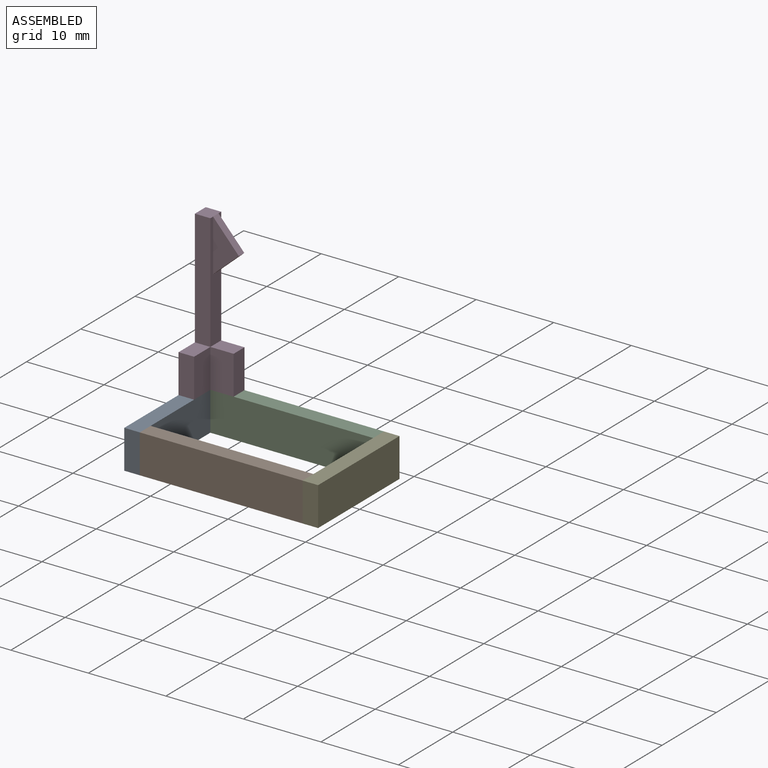
[diagram: assembled view]
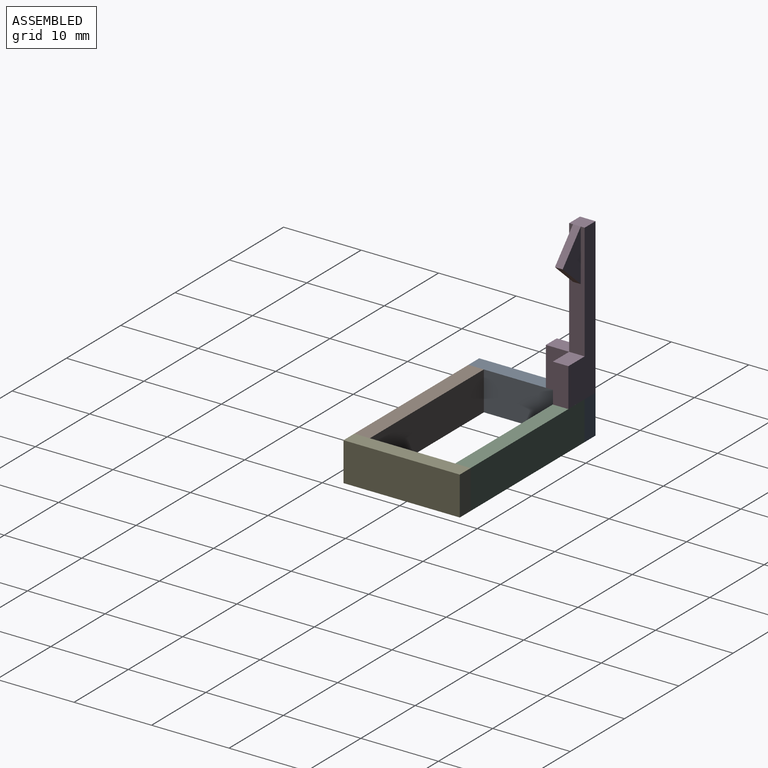
[diagram: assembled view, second angle]
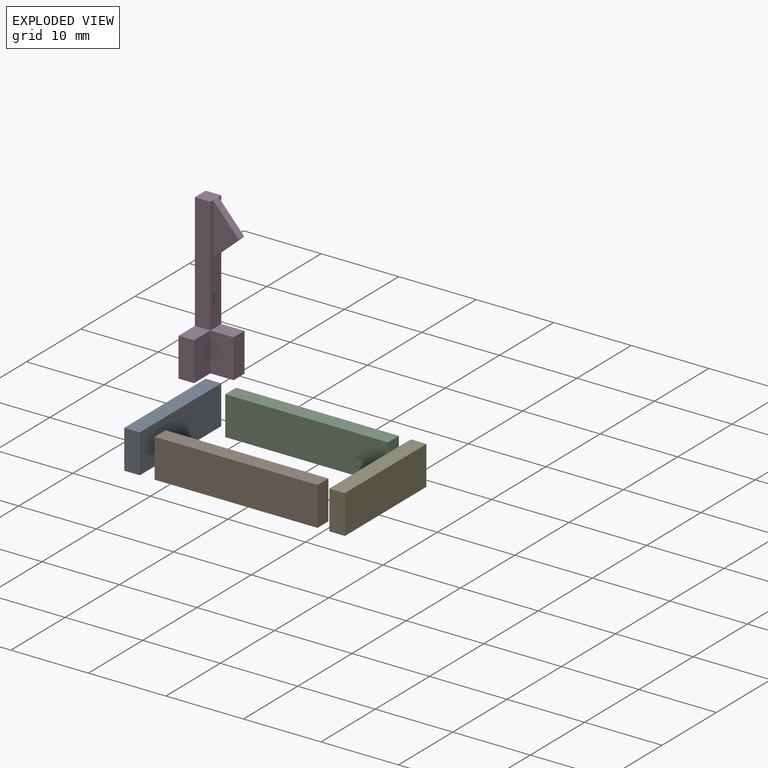
[diagram: exploded view]
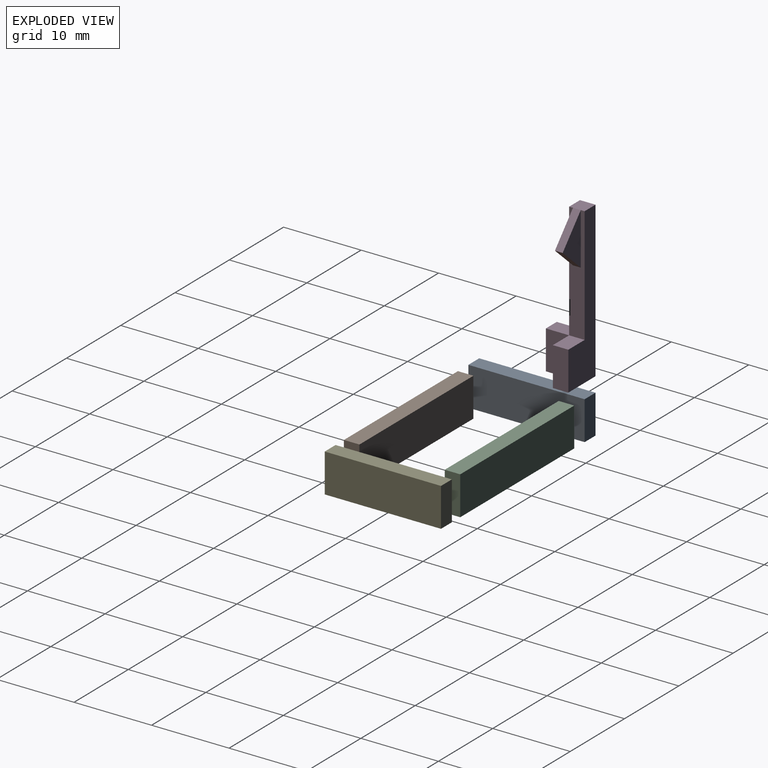
[diagram: exploded view, second angle]
ASSEMBLY  parts=5 mates=4
PART A: 6 faces, bbox 15x2x5 mm
  f0: plane 15x2mm, normal (0,0,1), area 30mm2, adj f1,f3,f4,f5
  f1: plane 5x2mm, normal (-1,0,0), area 10mm2, adj f0,f2,f4,f5
  f2: plane 15x2mm, normal (0,0,-1), area 30mm2, adj f1,f3,f4,f5
  f3: plane 5x2mm, normal (1,0,0), area 10mm2, adj f0,f2,f4,f5
  f4: plane 15x5mm, normal (0,-1,0), area 75mm2, adj f0,f1,f2,f3
  f5: plane 15x5mm, normal (0,1,0), area 75mm2, adj f0,f1,f2,f3
PART B: 6 faces, bbox 21x2x5 mm
  f0: plane 21x2mm, normal (0,0,1), area 42mm2, adj f1,f3,f4,f5
  f1: plane 5x2mm, normal (-1,0,0), area 10mm2, adj f0,f2,f4,f5
  f2: plane 21x2mm, normal (0,0,-1), area 42mm2, adj f1,f3,f4,f5
  f3: plane 5x2mm, normal (1,0,0), area 10mm2, adj f0,f2,f4,f5
  f4: plane 21x5mm, normal (0,-1,0), area 105mm2, adj f0,f1,f2,f3
  f5: plane 21x5mm, normal (0,1,0), area 105mm2, adj f0,f1,f2,f3
PART C: same geometry as B
PART D: 16 faces, bbox 5.3x5x20 mm
  f0: plane 3.73x3.33mm, normal (0.75,0,0.67), area 5mm2, adj f1,f2,f3,f5
  f1: plane 3.33x2.98mm, normal (0.67,0,-0.75), area 4.5mm2, adj f0,f2,f3,f4
  f2: plane 6.71x3.33mm, normal (0,-1,0), area 11.2mm2, adj f0,f1,f4
  f3: plane 6.71x3.33mm, normal (0,1,0), area 11.2mm2, adj f0,f1,f4
  f4: plane 15x2mm, normal (1,0,0), area 23.3mm2, adj f1,f2,f3,f5,f7,f8,f9
  f5: plane 2x2mm, normal (0,0,1), area 4mm2, adj f0,f4,f6,f7,f8
  f6: plane 20x5mm, normal (-1,0,0), area 55mm2, adj f5,f7,f8,f11,f12,f13
  f7: plane 15x2mm, normal (0,-1,0), area 30mm2, adj f4,f5,f6,f12
  f8: plane 20x5mm, normal (0,1,0), area 55mm2, adj f4,f5,f6,f9,f11,f14
  f9: plane 3x2mm, normal (0,0,1), area 6mm2, adj f4,f8,f14,f15
  f10: plane 5x3mm, normal (1,0,0), area 15mm2, adj f11,f12,f13,f15
  f11: plane 5x5mm, normal (0,0,-1), area 16mm2, adj f6,f8,f10,f13,f14,f15
  f12: plane 3x2mm, normal (0,0,1), area 6mm2, adj f6,f7,f10,f13
  f13: plane 5x2mm, normal (0,-1,0), area 10mm2, adj f6,f10,f11,f12
  f14: plane 5x2mm, normal (1,0,0), area 10mm2, adj f8,f9,f11,f15
  f15: plane 5x3mm, normal (0,-1,0), area 15mm2, adj f9,f10,f11,f14
PART E: same geometry as A
PLACE A rot(axis=(0,0,1),90deg) t=(4.8,-17,14.63)mm
PLACE B t=(-2.81,-5.39,14.63)mm
PLACE C rot(axis=(-1,0,0),180deg) t=(-2.81,5.61,-13.04)mm
PLACE D t=(35.47,6.61,27.49)mm
PLACE E rot(axis=(0,0,1),90deg) t=(27.8,-17,14.63)mm
MATE parallel C.f1 <-> A.f4  axis (-1,0,0) through (6.8,7.61,0.8)mm
MATE parallel B.f1 <-> A.f4  axis (-1,0,0) through (6.8,-7.39,0.8)mm
MATE planar D.f11 <-> A.f0  axis (0,0,-1) through (4.8,7.61,3.3)mm
MATE parallel E.f5 <-> C.f3  axis (-1,0,0) through (27.8,7.61,0.8)mm
